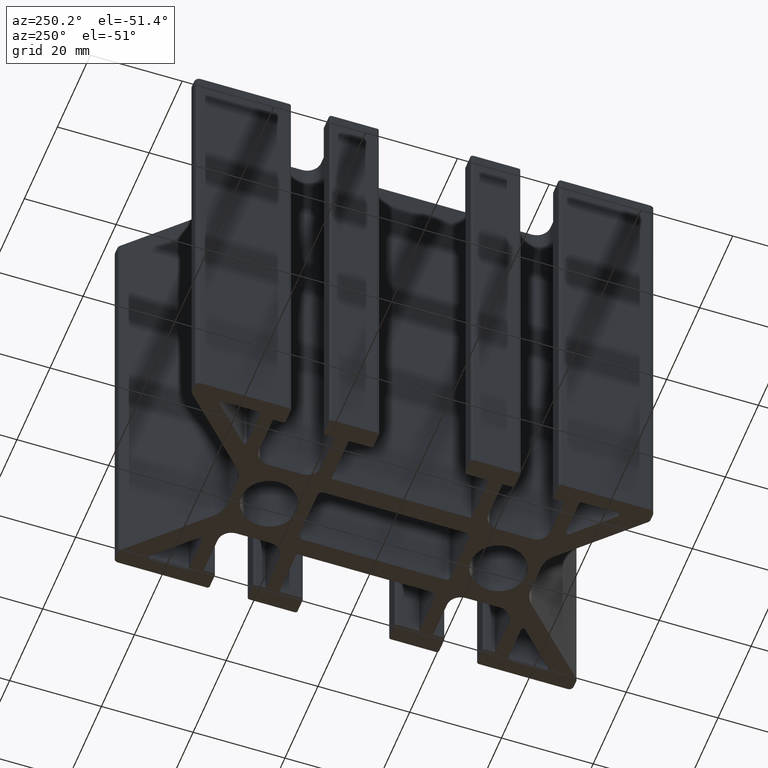
[diagram: clean part render]
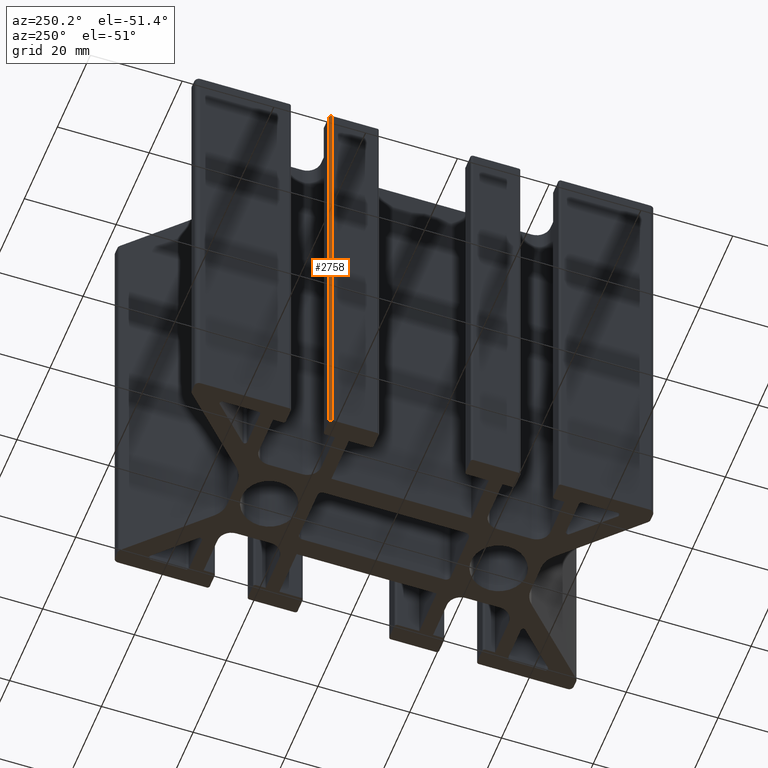
[diagram: same view with one face highlighted and labeled with its STEP entity id]
A machine part, auxiliary view. The second image highlights one B-rep face of the part: STEP entity #2758.
In plain terms, the highlighted cylindrical surface (edge-blend (fillet) strip) has radius 0.5 mm, axis along (0, 0, 1).
Its self-contained STEP definition (entity closure, byte-faithful):
#180=FACE_OUTER_BOUND('',#327,.T.);
#327=EDGE_LOOP('',(#2221,#2222,#2223,#2224));
#453=CIRCLE('',#2935,0.5);
#497=CIRCLE('',#3018,0.5);
#711=LINE('',#4499,#1001);
#712=LINE('',#4503,#1002);
#1001=VECTOR('',#3638,10.);
#1002=VECTOR('',#3643,10.);
#1212=VERTEX_POINT('',#4215);
#1213=VERTEX_POINT('',#4217);
#1315=VERTEX_POINT('',#4497);
#1316=VERTEX_POINT('',#4501);
#1522=EDGE_CURVE('',#1212,#1213,#453,.T.);
#1663=EDGE_CURVE('',#1212,#1315,#711,.T.);
#1664=EDGE_CURVE('',#1316,#1315,#497,.T.);
#1665=EDGE_CURVE('',#1213,#1316,#712,.T.);
#2221=ORIENTED_EDGE('',*,*,#1663,.T.);
#2222=ORIENTED_EDGE('',*,*,#1664,.F.);
#2223=ORIENTED_EDGE('',*,*,#1665,.F.);
#2224=ORIENTED_EDGE('',*,*,#1522,.F.);
#2657=CYLINDRICAL_SURFACE('',#3017,0.5);
#2758=ADVANCED_FACE('',(#180),#2657,.T.);
#2935=AXIS2_PLACEMENT_3D('',#4218,#3377,#3378);
#3017=AXIS2_PLACEMENT_3D('',#4500,#3639,#3640);
#3018=AXIS2_PLACEMENT_3D('',#4502,#3641,#3642);
#3377=DIRECTION('center_axis',(0.,0.,-1.));
#3378=DIRECTION('ref_axis',(0.,1.,0.));
#3638=DIRECTION('',(0.,0.,1.));
#3639=DIRECTION('center_axis',(0.,0.,1.));
#3640=DIRECTION('ref_axis',(0.,1.,0.));
#3641=DIRECTION('center_axis',(0.,0.,1.));
#3642=DIRECTION('ref_axis',(0.,1.,0.));
#3643=DIRECTION('',(0.,0.,1.));
#4215=CARTESIAN_POINT('',(-25.0000000000018,20.3500000000001,-50.));
#4217=CARTESIAN_POINT('',(-24.5000000000018,20.8500000000001,-50.));
#4218=CARTESIAN_POINT('Origin',(-24.5000000000018,20.3500000000001,-50.));
#4497=CARTESIAN_POINT('',(-25.0000000000018,20.3500000000001,50.));
#4499=CARTESIAN_POINT('',(-25.0000000000018,20.3500000000001,0.));
#4500=CARTESIAN_POINT('Origin',(-24.5000000000018,20.3500000000001,0.));
#4501=CARTESIAN_POINT('',(-24.5000000000018,20.8500000000001,50.));
#4502=CARTESIAN_POINT('Origin',(-24.5000000000018,20.3500000000001,50.));
#4503=CARTESIAN_POINT('',(-24.5000000000018,20.8500000000001,0.));